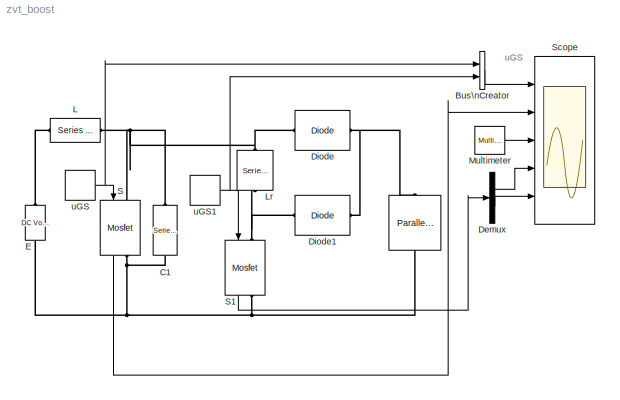
MODEL zvt_boost
KIND model
BLOCK [Reference]    REF=powerlib/Elements/Parallel RLC Branch
  AttributesFormatString = \\n
  Capacitance = 1e-5
  Inductance = inf
  LConnTagsString = a
  LeftPortType = p1
  Measurements = Branch voltage
  PhysicalDomain = powersysdomain
  Ports = [0, 0, 0, 0, 0, 1, 1]
  RConnTagsString = __new0
  Resistance = 10
  RightPortType = p1
  SourceBlock = powerlib/Elements/Parallel RLC Branch
  SourceType = Parallel RLC Branch
  SubClassName = unknown
BLOCK [BusCreator] Bus\nCreator
  DialogController = Simulink.DDGSource_Bus
  DisplayOption = bar
  Inputs = 2
  Ports = [2, 1]
BLOCK [Reference] C1  REF=powerlib/Elements/Series RLC Branch
  AttributesFormatString = \\n
  Capacitance = 5e-8
  Inductance = 0
  LConnTagsString = __new0
  LeftPortType = p1
  Measurements = Branch voltage
  PhysicalDomain = powersysdomain
  Ports = [0, 0, 0, 0, 0, 1, 1]
  RConnTagsString = __new0
  Resistance = 0
  RightPortType = p1
  SourceBlock = powerlib/Elements/Series RLC Branch
  SourceType = Series RLC Branch
  SubClassName = unknown
BLOCK [Demux] Demux
  DisplayOption = bar
  Outputs = 2
  Ports = [1, 2]
BLOCK [Reference] Diode  REF=powerlib/Power\nElectronics/Diode
  Cs = 0
  IC = 0
  Lon = 0
  Measurements = off
  Ports = [0, 0, 0, 0, 0, 1, 1]
  Ron = 0.001
  Rs = 500
  ShowPortLabels = on
  SourceBlock = powerlib/Power\nElectronics/Diode
  SourceType = Diode
  Vf = 0.8
BLOCK [Reference] Diode1  REF=powerlib/Power\nElectronics/Diode
  Cs = 0
  IC = 0
  Lon = 0
  Measurements = off
  Ports = [0, 0, 0, 0, 0, 1, 1]
  Ron = 0.001
  Rs = 1000
  ShowPortLabels = on
  SourceBlock = powerlib/Power\nElectronics/Diode
  SourceType = Diode
  Vf = 0.8
BLOCK [Reference] E  REF=powerlib/Electrical\nSources/DC Voltage Source
  Amplitude = 50
  AttributesFormatString = \\n
  Description = source block
  Measurements = None
  Ports = [0, 0, 0, 0, 0, 1, 1]
  ShowPortLabels = on
  SourceBlock = powerlib/Electrical\nSources/DC Voltage Source
  SourceType = DC Voltage Source
BLOCK [Reference] L  REF=powerlib/Elements/Series RLC Branch
  AttributesFormatString = \\n
  Capacitance = inf
  Inductance = 1e-4
  LConnTagsString = __new0
  LeftPortType = p1
  Measurements = Branch current
  PhysicalDomain = powersysdomain
  Ports = [0, 0, 0, 0, 0, 1, 1]
  RConnTagsString = __new0
  Resistance = 0
  RightPortType = p1
  SourceBlock = powerlib/Elements/Series RLC Branch
  SourceType = Series RLC Branch
  SubClassName = unknown
BLOCK [Reference] Lr  REF=powerlib/Elements/Series RLC Branch
  AttributesFormatString = \\n
  Capacitance = inf
  Inductance = 2e-6
  LConnTagsString = __new0
  LeftPortType = p1
  Measurements = Branch current
  PhysicalDomain = powersysdomain
  Ports = [0, 0, 0, 0, 0, 1, 1]
  RConnTagsString = __new0
  Resistance = 0
  RightPortType = p1
  SourceBlock = powerlib/Elements/Series RLC Branch
  SourceType = Series RLC Branch
  SubClassName = unknown
BLOCK [Reference] Multimeter  REF=powerlib/Measurements/Multimeter
  AxesSetting = [0,0.1,-100,100]
  Display = 0
  Gain = [1 1]
  L = 4
  OutputType = Complex
  PSBOutputType = 1
  PSBequivalent = 0
  PhasorSimulation = off
  Ports = [0, 1]
  SavedBlockNames = -11
  ShowPortLabels = on
  SourceBlock = powerlib/Measurements/Multimeter
  SourceType = MultimeterPSB
  sel = [4 3]
  yselected = {'Ib: Lr','Ib: L'};
BLOCK [Reference] S  REF=powerlib/Power\nElectronics/Mosfet
  Cs = 1e-8
  IC = 0
  Lon = 1e-9
  Measurements = on
  Ports = [1, 1, 0, 0, 0, 1, 1]
  Rd = .1
  Ron = 0.01
  Rs = 100
  ShowPortLabels = on
  SourceBlock = powerlib/Power\nElectronics/Mosfet
  SourceType = Mosfet
BLOCK [Reference] S1  REF=powerlib/Power\nElectronics/Mosfet
  Cs = 1e-9
  IC = 0
  Lon = 1e-8
  Measurements = on
  Ports = [1, 1, 0, 0, 0, 1, 1]
  Rd = .1
  Ron = 0.01
  Rs = 10
  ShowPortLabels = on
  SourceBlock = powerlib/Power\nElectronics/Mosfet
  SourceType = Mosfet
BLOCK [Scope] Scope
  DataFormat = StructureWithTime
  MaxDataPoints = 50000
  NumInputPorts = 5
  Ports = [5]
  SaveName = var
  SaveToWorkspace = on
  TimeRange = 5e-005
  YMax = 2~150~30~30~150
  YMin = -1~-50~-10~-10~-50
  ZoomMode = xonly
BLOCK [DiscretePulseGenerator] uGS
  Period = 20e-6
  Ports = [0, 1]
  PulseType = Time based
  PulseWidth = 30
BLOCK [DiscretePulseGenerator] uGS1
  Period = 20e-6
  PhaseDelay = 19e-6
  Ports = [0, 1]
  PulseType = Time based
  PulseWidth = 5
ANNOTATION (root): uGS
LINE Bus\nCreator:1 -> Scope:1
LINE Demux:1 -> Scope:4
LINE Demux:2 -> Scope:5
LINE Multimeter:1 -> Scope:3
LINE S1:1 -> Demux:1
LINE S:1 -> Scope:2
NET uGS1:1 -> Bus\nCreator:2, S1:1
NET uGS:1 -> Bus\nCreator:1, S:1
PNET net1:  :LConn1 -- Diode1:RConn1 -- Diode:RConn1
PNET net2:  :RConn1 -- C1:RConn1 -- E:LConn1 -- S1:RConn1 -- S:RConn1
PNET net3: C1:LConn1 -- Diode:LConn1 -- L:RConn1 -- Lr:LConn1 -- S:LConn1
PNET net4: Diode1:LConn1 -- Lr:RConn1 -- S1:LConn1
PLINE E:RConn1 -- L:LConn1
note: NET lines group one-source signal fan-out (src -> all destinations, sorted); 1:1 wires keep LINE; PNET lines group multi-terminal physical nets as a canonical sorted terminal list (undirected conserving connections); 2-terminal nets keep the pairwise PLINE form
